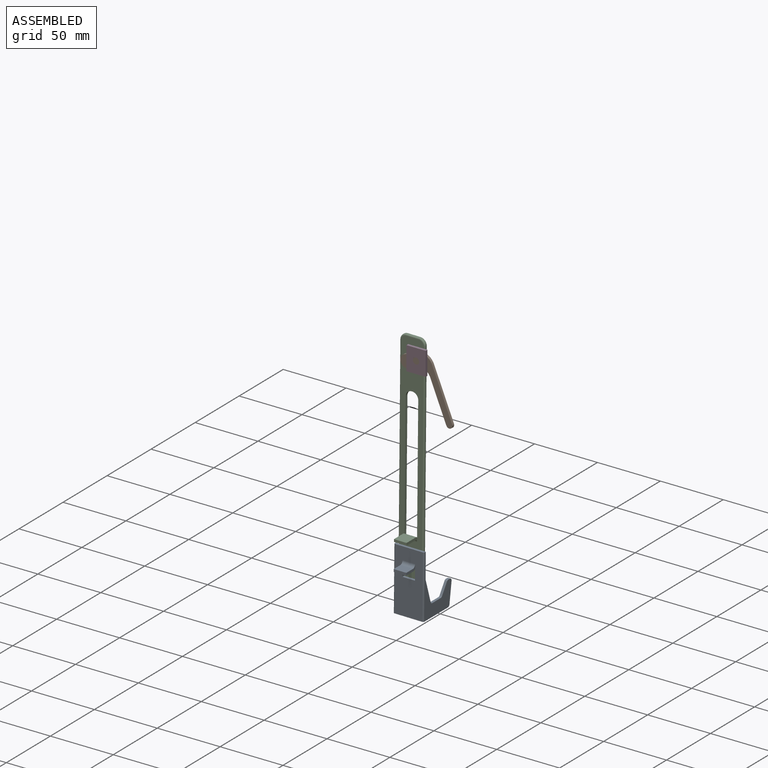
[diagram: assembled view]
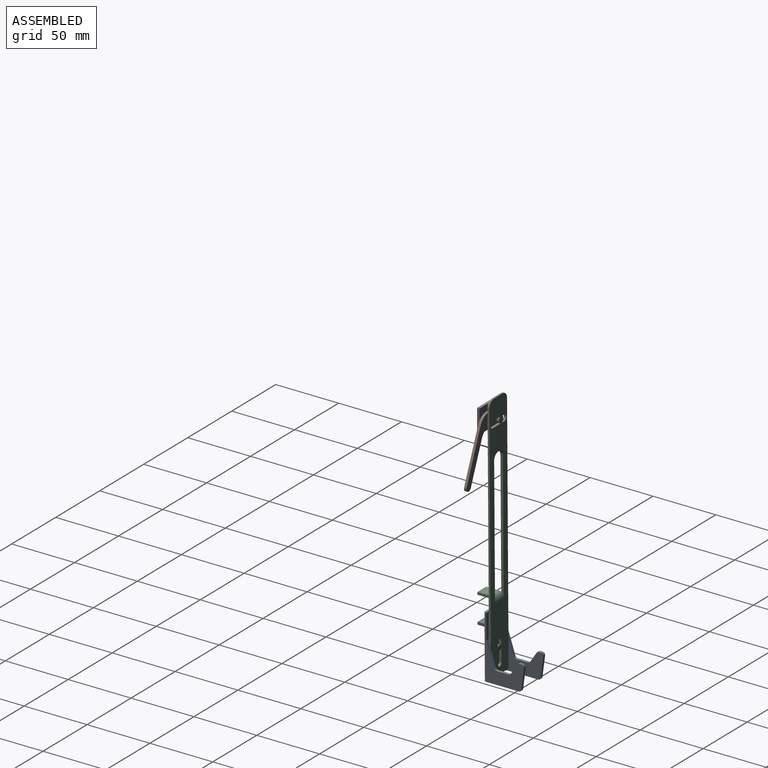
[diagram: assembled view, second angle]
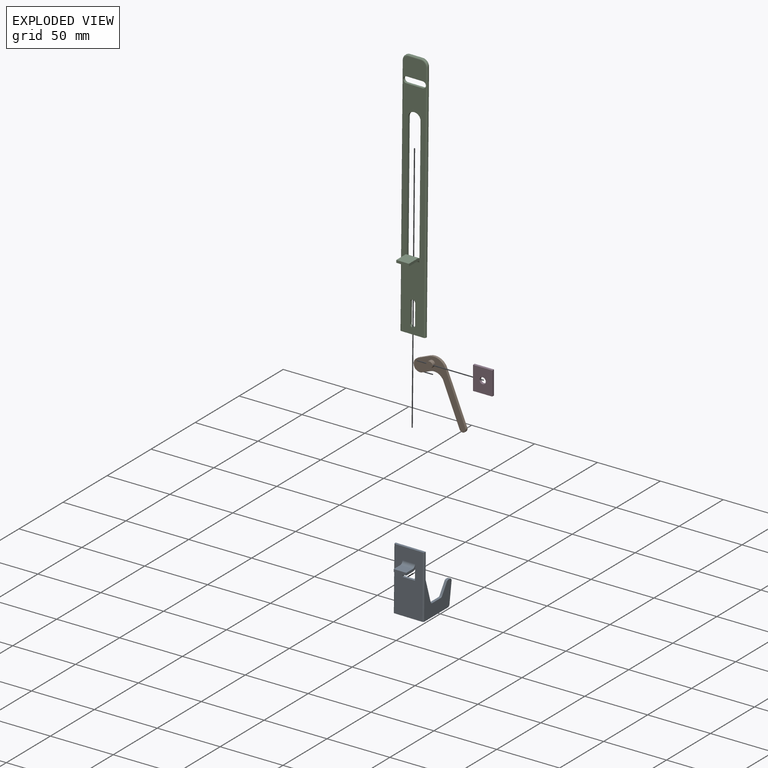
[diagram: exploded view]
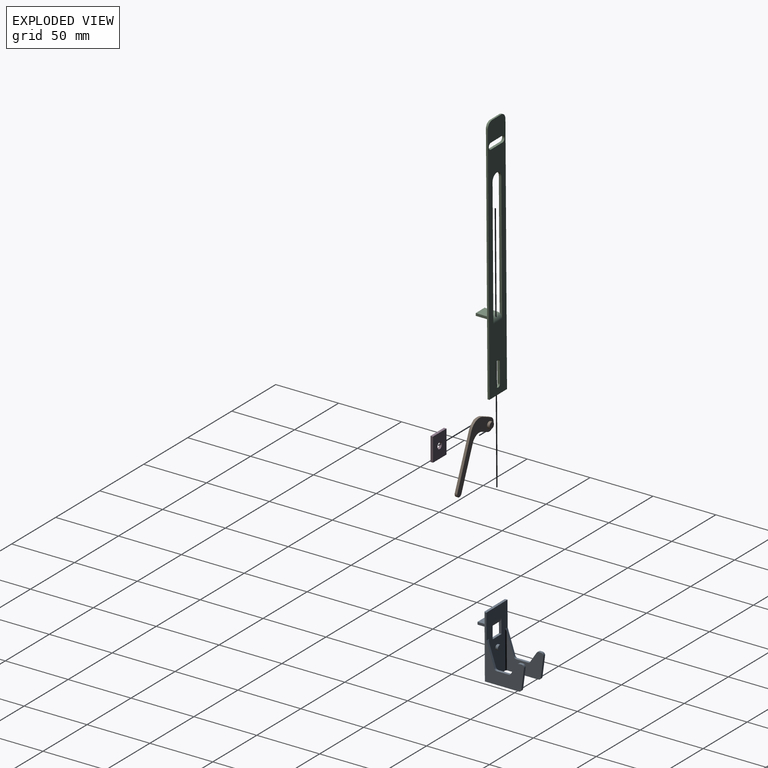
[diagram: exploded view, second angle]
ASSEMBLY  parts=4 mates=2
PART A: 44 faces, bbox 24x41.7x50 mm
  f0: plane 12x2mm, normal (1,0,0), area 18.7mm2, adj f2,f4,f18,f22
  f1: plane 12x2mm, normal (-1,0,0), area 18.7mm2, adj f2,f4,f18,f22
  f2: plane 50x24mm, normal (0,1,0), area 887.4mm2, adj f0,f1,f3,f5,f7,f16,f18,f22
  f3: plane 24x2mm, normal (0,0,1), area 47.6mm2, adj f2,f4,f16,f36,f41,f42
  f4: plane 50x22mm, normal (0,-1,0), area 980mm2, adj f0,f1,f3,f5,f18,f23,f24,f25
  f5: plane 27.56x24mm, normal (0,0,-1), area 150.2mm2, adj f2,f4,f8,f16,f17,f28,f36,f37
  f6: cylinder r=2mm len=2mm, axis (-1,0,0), area 5mm2, adj f7,f15,f16,f17
  f7: plane 18.62x6.05mm, normal (0,0.95,0.31), area 39.8mm2, adj f2,f6,f16,f17,f43
  f8: cylinder r=2mm len=2mm, axis (-1,0,0), area 5.7mm2, adj f5,f9,f16,f17
  f9: plane 16x2.15mm, normal (0,0.99,-0.13), area 32.3mm2, adj f8,f10,f16,f17
  f10: cylinder r=2mm len=2.27mm, axis (-1,0,0), area 6.8mm2, adj f9,f11,f16,f17
  f11: plane 2x1.63mm, normal (0,0,1), area 3.3mm2, adj f10,f12,f16,f17
  f12: cylinder r=2mm len=2mm, axis (-1,0,0), area 4mm2, adj f11,f13,f16,f17
  f13: plane 8.18x5.32mm, normal (0,-0.84,0.54), area 19.5mm2, adj f12,f14,f16,f17
  f14: cylinder r=2mm len=2mm, axis (-1,0,0), area 4mm2, adj f13,f15,f16,f17
  f15: plane 9.46x2mm, normal (0,0,1), area 18.9mm2, adj f6,f14,f16,f17
  f16: plane 50x30.71mm, normal (1,0,0), area 469.2mm2, adj f2,f3,f5,f6,f7,f8,f9,f10
  f17: plane 28.71x26.92mm, normal (-1,0,0), area 390.7mm2, adj f5,f6,f7,f8,f9,f10,f11,f12
  f18: plane 10x2mm, normal (0,0,1), area 20mm2, adj f0,f1,f2,f4
  f19: plane 10x7.44mm, normal (0,0,1), area 74.3mm2, adj f20,f23,f24,f25
  f20: plane 10x2mm, normal (0,-1,0), area 20mm2, adj f19,f21,f24,f25
  f21: plane 10x7.44mm, normal (0,0,-1), area 74.3mm2, adj f20,f22,f24,f25
  f22: cylinder r=4.57mm len=10mm, axis (-1,0,0), area 71.7mm2, adj f0,f1,f2,f21,f24,f25
  f23: cylinder r=2.57mm len=10mm, axis (-1,0,0), area 40.3mm2, adj f4,f19,f24,f25
  f24: plane 10x4.57mm, normal (1,0,0), area 20.8mm2, adj f4,f19,f20,f21,f22,f23
  f25: plane 10x4.57mm, normal (-1,0,0), area 20.8mm2, adj f4,f19,f20,f21,f22,f23
  f26: cylinder r=2mm len=2mm, axis (1,0,0), area 5mm2, adj f27,f35,f36,f37
  f27: plane 18.62x6.05mm, normal (0,0.95,0.31), area 39.8mm2, adj f2,f26,f36,f37,f40
  f28: cylinder r=2mm len=2mm, axis (1,0,0), area 5.7mm2, adj f5,f29,f36,f37
  f29: plane 16x2.15mm, normal (0,0.99,-0.13), area 32.3mm2, adj f28,f30,f36,f37
  f30: cylinder r=2mm len=2.27mm, axis (1,0,0), area 6.8mm2, adj f29,f31,f36,f37
  f31: plane 2x1.63mm, normal (0,0,1), area 3.3mm2, adj f30,f32,f36,f37
  f32: cylinder r=2mm len=2mm, axis (1,0,0), area 4mm2, adj f31,f33,f36,f37
  f33: plane 8.18x5.32mm, normal (0,-0.84,0.54), area 19.5mm2, adj f32,f34,f36,f37
  f34: cylinder r=2mm len=2mm, axis (1,0,0), area 4mm2, adj f33,f35,f36,f37
  f35: plane 9.46x2mm, normal (0,0,1), area 18.9mm2, adj f26,f34,f36,f37
  f36: plane 50x30.71mm, normal (-1,0,0), area 469.2mm2, adj f2,f3,f5,f26,f27,f28,f29,f30
  f37: plane 28.71x26.92mm, normal (1,0,0), area 390.7mm2, adj f5,f26,f27,f28,f29,f30,f31,f32
  f38: plane 4x4mm, normal (0,1,0), area 12.6mm2, adj f39
  f39: cylinder r=2mm len=4mm, axis (0,-1,0), area 25.1mm2, adj f2,f38
  f40: cylinder r=1mm len=30mm, axis (0,0,-1), area 45.4mm2, adj f2,f5,f27,f37
  f41: cylinder r=1mm len=50mm, axis (0,0,1), area 78.5mm2, adj f3,f4,f5,f36
  f42: cylinder r=1mm len=50mm, axis (0,0,1), area 78.5mm2, adj f3,f4,f5,f16
  f43: cylinder r=1mm len=30mm, axis (0,0,-1), area 45.4mm2, adj f2,f5,f7,f17
PART B: 14 faces, bbox 24.9x7x54.4 mm
  f0: plane 41.91x2mm, normal (1,0,0), area 83.8mm2, adj f1,f7,f8,f9
  f1: cylinder r=10mm len=10mm, axis (0,1,0), area 31.4mm2, adj f0,f2,f8,f9
  f2: plane 9.91x2mm, normal (0,0,1), area 19.8mm2, adj f1,f3,f8,f9
  f3: cylinder r=5mm len=10mm, axis (0,1,0), area 31.4mm2, adj f2,f4,f8,f9
  f4: plane 6.91x2mm, normal (0,0,-1), area 13.8mm2, adj f3,f5,f8,f9
  f5: cylinder r=8mm len=8mm, axis (0,1,0), area 25.1mm2, adj f4,f6,f8,f9
  f6: plane 33.91x2mm, normal (-1,0,0), area 67.8mm2, adj f5,f7,f8,f9
  f7: cylinder r=2.5mm len=5mm, axis (0,1,0), area 15.7mm2, adj f0,f6,f8,f9
  f8: plane 54.41x24.91mm, normal (0,-1,0), area 430.3mm2, adj f0,f1,f2,f3,f4,f5,f6,f7
  f9: plane 54.41x24.91mm, normal (0,1,0), area 430.3mm2, adj f0,f1,f2,f3,f4,f5,f6,f7
  f10: cylinder r=2.5mm len=5mm, axis (0,1,0), area 47.1mm2, adj f8,f11
  f11: plane 5x5mm, normal (0,-1,0), area 19.6mm2, adj f10
  f12: plane 5x5mm, normal (0,1,0), area 19.6mm2, adj f13
  f13: cylinder r=2.5mm len=5mm, axis (0,1,0), area 31.4mm2, adj f9,f12
PART C: 31 faces, bbox 20.8x14x200.4 mm
  f0: plane 200x20mm, normal (0,1,0), area 2766.1mm2, adj f2,f3,f4,f5,f6,f7,f8,f9
  f1: plane 199x18mm, normal (0,-1,0), area 2352mm2, adj f2,f3,f6,f7,f13,f14,f15,f16
  f2: plane 102.27x2mm, normal (1,0,0), area 199.6mm2, adj f0,f1,f7,f9
  f3: plane 102.27x2mm, normal (-1,0,0), area 199.6mm2, adj f0,f1,f7,f9
  f4: plane 10x1mm, normal (0,0,1), area 10mm2, adj f0,f20,f21,f28
  f5: plane 195x1mm, normal (-1,0,0), area 195mm2, adj f0,f6,f20,f30
  f6: plane 20x2mm, normal (0,0,-1), area 39.6mm2, adj f0,f1,f5,f8,f26,f30
  f7: cylinder r=5mm len=10mm, axis (0,1,0), area 31.4mm2, adj f0,f1,f2,f3
  f8: plane 195x1mm, normal (1,0,0), area 195mm2, adj f0,f6,f21,f26
  f9: cylinder r=4mm len=10mm, axis (-1,0,0), area 62.8mm2, adj f0,f2,f3,f10,f14,f15
  f10: plane 10x10mm, normal (0,0,1), area 100mm2, adj f9,f11,f14,f15
  f11: plane 10x2mm, normal (0,-1,0), area 20mm2, adj f10,f12,f14,f15
  f12: plane 10x10mm, normal (0,0,-1), area 100mm2, adj f11,f13,f14,f15
  f13: cylinder r=2mm len=10mm, axis (-1,0,0), area 31.4mm2, adj f1,f12,f14,f15
  f14: plane 12x4mm, normal (1,0,0), area 24.5mm2, adj f1,f9,f10,f11,f12,f13
  f15: plane 12x4mm, normal (-1,0,0), area 24.5mm2, adj f1,f9,f10,f11,f12,f13
  f16: cylinder r=2mm len=4mm, axis (0,1,0), area 12.6mm2, adj f0,f1,f17,f19
  f17: plane 16x2mm, normal (-1,0,0), area 32mm2, adj f0,f1,f16,f18
  f18: cylinder r=2mm len=4mm, axis (0,1,0), area 12.6mm2, adj f0,f1,f17,f19
  f19: plane 16x2mm, normal (1,0,0), area 32mm2, adj f0,f1,f16,f18
  f20: cylinder r=5mm len=5mm, axis (0,-1,0), area 7.9mm2, adj f0,f4,f5,f29
  f21: cylinder r=5mm len=5mm, axis (0,1,0), area 7.9mm2, adj f0,f4,f8,f27
  f22: plane 13x2mm, normal (0,0,1), area 26mm2, adj f0,f1,f23,f25
  f23: cylinder r=2.5mm len=5mm, axis (0,-1,0), area 15.7mm2, adj f0,f1,f22,f24
  f24: plane 13x2mm, normal (0,0,-1), area 26mm2, adj f0,f1,f23,f25
  f25: cylinder r=2.5mm len=5mm, axis (0,1,0), area 15.7mm2, adj f0,f1,f22,f24
  f26: cylinder r=1mm len=195mm, axis (0,0,-1), area 306.3mm2, adj f1,f6,f8,f27
  f27: torus R=4mm, axis (0,-1,0), area 11.4mm2, adj f1,f21,f26,f28
  f28: cylinder r=1mm len=10mm, axis (1,0,0), area 15.7mm2, adj f1,f4,f27,f29
  f29: torus R=4mm, axis (0,-1,0), area 11.4mm2, adj f1,f20,f28,f30
  f30: cylinder r=1mm len=195mm, axis (0,0,1), area 306.3mm2, adj f1,f5,f6,f29
PART D: 7 faces, bbox 15.3x2x18.7 mm
  f0: plane 18.75x2mm, normal (1,0,0), area 37.5mm2, adj f1,f3,f5,f6
  f1: plane 15.3x2mm, normal (0,0,1), area 30.6mm2, adj f0,f2,f5,f6
  f2: plane 18.75x2mm, normal (-1,0,0), area 37.5mm2, adj f1,f3,f5,f6
  f3: plane 15.3x2mm, normal (0,0,-1), area 30.6mm2, adj f0,f2,f5,f6
  f4: cylinder r=2.5mm len=5mm, axis (0,1,0), area 31.4mm2, adj f5,f6
  f5: plane 18.75x15.3mm, normal (0,-1,0), area 267.3mm2, adj f0,f1,f2,f3,f4
  f6: plane 18.75x15.3mm, normal (0,1,0), area 267.3mm2, adj f0,f1,f2,f3,f4
PLACE A rot(axis=(0,1,0),0.5deg) t=(-59.13,-18.39,-28.73)mm fixed
PLACE B rot(axis=(0,-1,0),22.3deg) t=(-8.46,-18.39,-15.47)mm
PLACE C rot(axis=(0,1,0),0.5deg) t=(-59.11,-18.39,-26.65)mm
PLACE D t=(-57.91,-19.39,-22.67)mm fixed
MATE revolute D.f4 <-> B.f10  axis (0,-1,0) through (-51.41,-25.39,106.16)mm
MATE slider C.f6 <-> A.f5  axis (-0.01,0,-1) through (-59.6,-20.39,-79.56)mm
